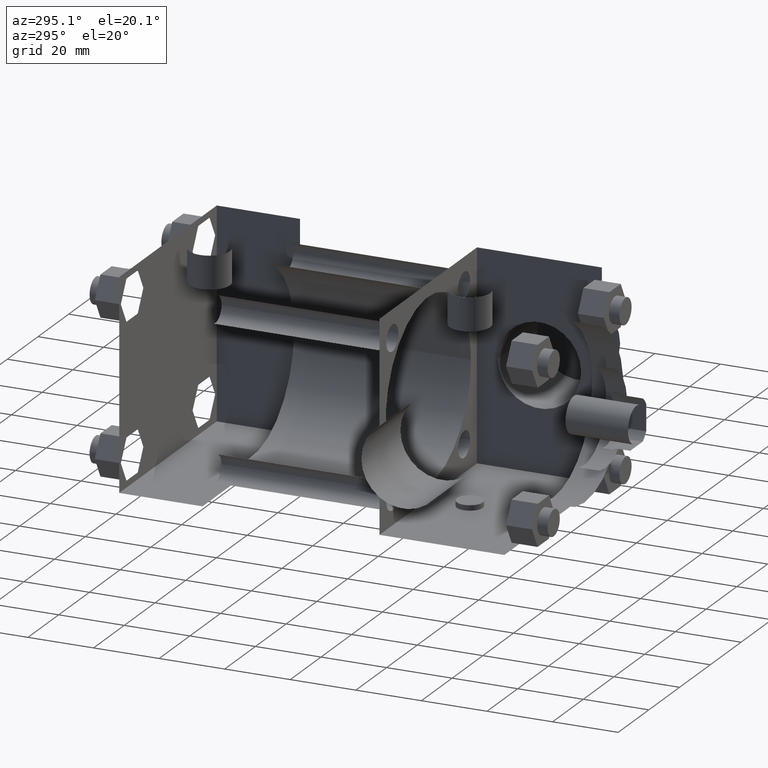
[diagram: clean part render]
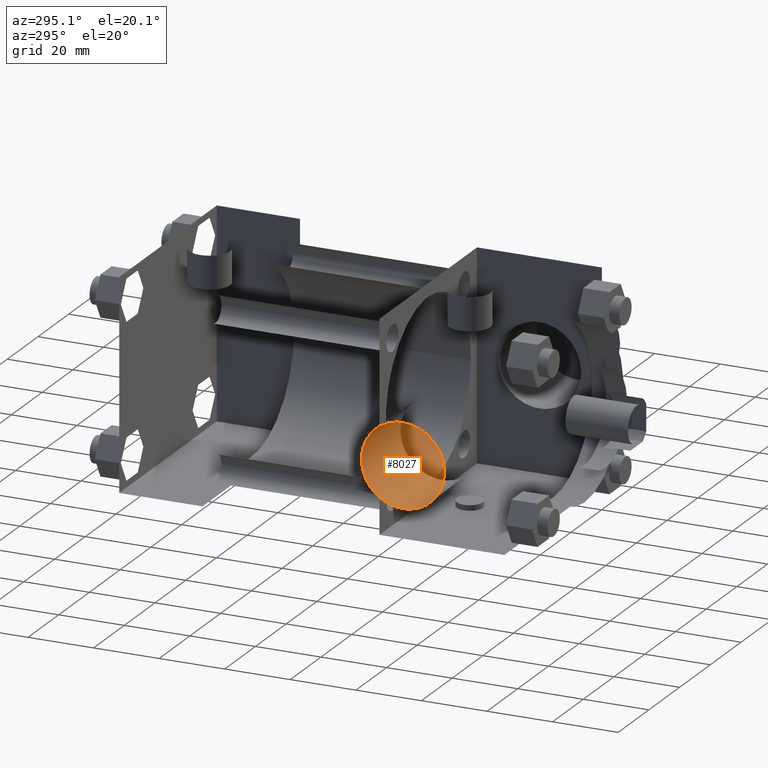
[diagram: same view with one face highlighted and labeled with its STEP entity id]
A machine part, auxiliary view. The second image highlights one B-rep face of the part: STEP entity #8027.
In plain terms, the highlighted planar face has unit normal (1, 0, 0).
Its self-contained STEP definition (entity closure, byte-faithful):
#752=EDGE_CURVE('',#758,#758,#753,.T.);
#753=CIRCLE('',#754,1.270000000E+001);
#754=AXIS2_PLACEMENT_3D('',#755,#756,#757);
#755=CARTESIAN_POINT('',(-5.715000000E+001,4.445000000E+001,0.000000000E+000));
#756=DIRECTION('',(1.0E+000,0.0E+000,0.0E+000));
#757=DIRECTION('',(0.0E+000,-1.0E+000,0.0E+000));
#758=VERTEX_POINT('',#759);
#759=CARTESIAN_POINT('',(-5.715000000E+001,3.175000000E+001,0.000000000E+000));
#766=FACE_OUTER_BOUND('',#767,.T.);
#767=EDGE_LOOP('',(#768));
#768=ORIENTED_EDGE('',*,*,#752,.F.);
#769=PLANE('',#770);
#770=AXIS2_PLACEMENT_3D('',#771,#772,#773);
#771=CARTESIAN_POINT('',(-5.715000000E+001,4.445000000E+001,0.000000000E+000));
#772=DIRECTION('',(1.0E+000,0.0E+000,0.0E+000));
#773=DIRECTION('',(0.0E+000,0.0E+000,-1.0E+000));
#8027=ADVANCED_FACE('',(#766),#769,.F.);